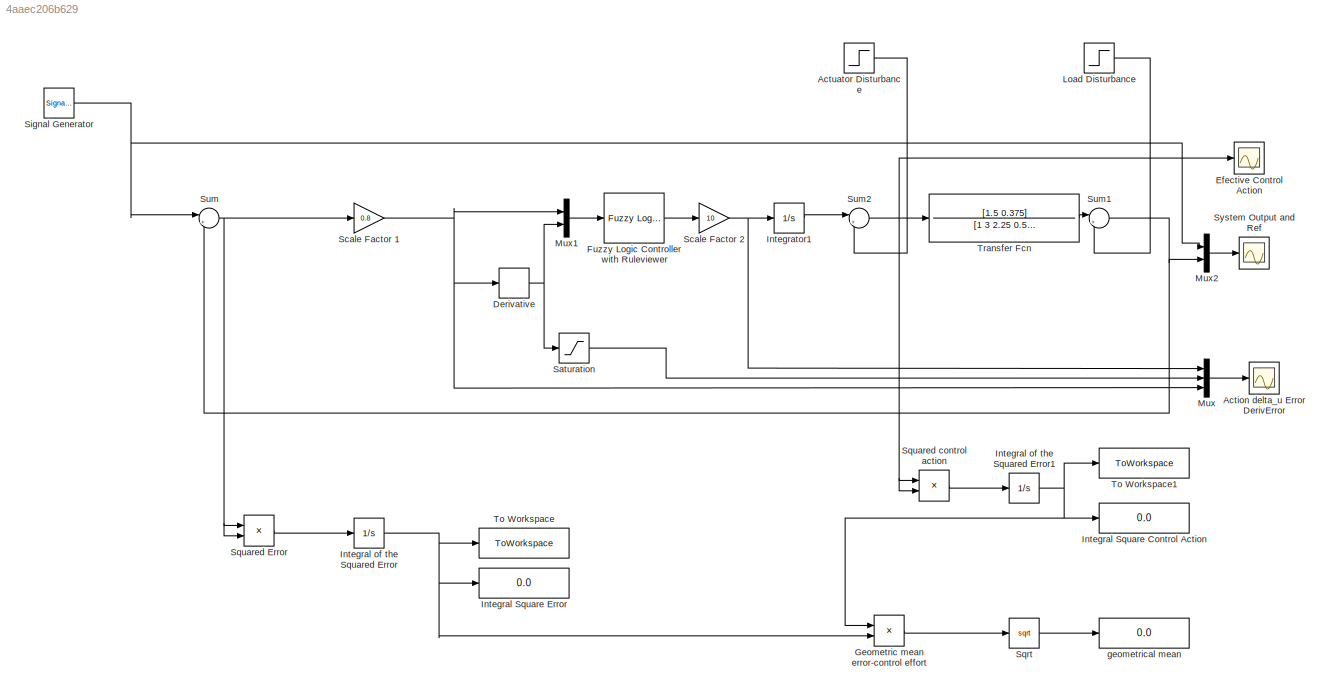
MODEL slx_4aaec206b629
KIND model
CONFIG AbsTol = auto
CONFIG EnableMultiTasking = off
CONFIG FixedStep = auto
CONFIG MaxStep = auto
CONFIG MinStep = auto
CONFIG RelTol = 1e-3
CONFIG SampleTimeConstraint = Unconstrained
CONFIG SolverName = VariableStepAuto
CONFIG StartTime = 0.0
CONFIG StopTime = 400
BLOCK [Scope] Action delta_u Error DerivError
  Floating = off
  NumInputPorts = 1
  ScopeSpecificationString = Simulink.scopes.TimeScopeBlockCfg('CurrentConfiguration', extmgr.ConfigurationSet(extmgr.Configuration('Core','General UI',true),extmgr.Configuration('Core','Source UI',true),extmgr.Configuration('Sources','WiredSimulink',true,'DataLoggingVariableName','ScopeData2'),extmgr.Configuration('Visuals','Time Domain',true,'SerializedDisplays',{struct('MinYLimReal','-5.61316','MaxYLimReal','8.85816','YLab...<+1430ch>
BLOCK [Step] Actuator Disturbance
  SampleTime = 0
  Time = 200
BLOCK [Derivative] Derivative
BLOCK [Scope] Efective Control Action
  Floating = off
  NumInputPorts = 1
  ScopeSpecificationString = Simulink.scopes.TimeScopeBlockCfg('CurrentConfiguration', extmgr.ConfigurationSet(extmgr.Configuration('Core','General UI',true),extmgr.Configuration('Core','Source UI',true),extmgr.Configuration('Sources','WiredSimulink',true,'DataLoggingVariableName','ScopeData1'),extmgr.Configuration('Visuals','Time Domain',true,'SerializedDisplays',{struct('MinYLimReal','-2.73102','MaxYLimReal','3.5592','YLabe...<+1388ch>
BLOCK [Reference] Fuzzy Logic Controller with Ruleviewer  REF=fuzblock/Fuzzy Logic   (lib defined in mdl_858b3b3e7478)
Controller 
with Ruleviewer
  SourceBlock = fuzblock/Fuzzy Logic \nController \nwith Ruleviewer
  SourceType = Fuzzy Inference System
BLOCK [Product] Geometric mean error-control effort
BLOCK [Display] Integral Square Control Action
  Decimation = 1
BLOCK [Display] Integral Square Error
  Decimation = 1
BLOCK [Integrator] Integral of the Squared Error
BLOCK [Integrator] Integral of the Squared Error1
BLOCK [Integrator] Integrator1
BLOCK [Step] Load Disturbance
  SampleTime = 0
  Time = 300
BLOCK [Mux] Mux
  DisplayOption = bar
  Inputs = 3
BLOCK [Mux] Mux1
  DisplayOption = bar
  Inputs = 2
BLOCK [Mux] Mux2
  DisplayOption = bar
  Inputs = 2
BLOCK [Saturate] Saturation
BLOCK [Gain] Scale Factor 1
  Gain = 0.8
BLOCK [Gain] Scale Factor 2
  Gain = 10
BLOCK [SignalGenerator] Signal Generator
  Frequency = 0.02
  Units = rad/sec
BLOCK [Sqrt] Sqrt
BLOCK [Product] Squared Error
BLOCK [Product] Squared control action
BLOCK [Sum] Sum
  Inputs = |+-
BLOCK [Sum] Sum1
  Inputs = |+-
BLOCK [Sum] Sum2
  Inputs = |+-
BLOCK [Scope] System Output and Ref
  Floating = off
  NumInputPorts = 1
  ScopeSpecificationString = Simulink.scopes.TimeScopeBlockCfg('CurrentConfiguration', extmgr.ConfigurationSet(extmgr.Configuration('Core','General UI',true),extmgr.Configuration('Core','Source UI',true),extmgr.Configuration('Sources','WiredSimulink',true),extmgr.Configuration('Visuals','Time Domain',true,'SerializedDisplays',{struct('MinYLimReal','-1.57261','MaxYLimReal','1.28585','YLabelReal','','MinYLimMag','0.00000','MaxY...<+1370ch>
BLOCK [ToWorkspace] To Workspace
  FixptAsFi = on
  MaxDataPoints = inf
  SampleTime = -1
  SaveFormat = Timeseries
  VariableName = Performance1
BLOCK [ToWorkspace] To Workspace1
  FixptAsFi = on
  MaxDataPoints = inf
  SampleTime = -1
  SaveFormat = Timeseries
  VariableName = Performance2
BLOCK [TransferFcn] Transfer Fcn
  Denominator = [1 3 2.25 0.55]
  Numerator = [1.5 0.375]
BLOCK [Display] geometrical mean
  Decimation = 1
LINE Actuator Disturbance:1 -> Sum2:2
NET Derivative:1 -> Mux1:2, Saturation:1
LINE Fuzzy Logic Controller with Ruleviewer:1 -> Scale Factor 2:1
LINE Geometric mean error-control effort:1 -> Sqrt:1
NET Integral of the Squared Error1:1 -> Geometric mean error-control effort:1, Integral Square Control Action:1, To Workspace1:1
NET Integral of the Squared Error:1 -> Geometric mean error-control effort:2, Integral Square Error:1, To Workspace:1
LINE Integrator1:1 -> Sum2:1
LINE Load Disturbance:1 -> Sum1:2
LINE Mux1:1 -> Fuzzy Logic Controller with Ruleviewer:1
LINE Mux2:1 -> System Output and Ref:1
LINE Mux:1 -> Action delta_u Error DerivError:1
LINE Saturation:1 -> Mux:2
NET Scale Factor 1:1 -> Derivative:1, Mux1:1, Mux:3
NET Scale Factor 2:1 -> Integrator1:1, Mux:1
NET Signal Generator:1 -> Mux2:1, Sum:1
LINE Sqrt:1 -> geometrical mean:1
LINE Squared Error:1 -> Integral of the Squared Error:1
LINE Squared control action:1 -> Integral of the Squared Error1:1
NET Sum1:1 -> Mux2:2, Sum:2
NET Sum2:1 -> Efective Control Action:1, Squared control action:1, Squared control action:2, Transfer Fcn:1
NET Sum:1 -> Scale Factor 1:1, Squared Error:1, Squared Error:2
LINE Transfer Fcn:1 -> Sum1:1
note: NET lines group one-source signal fan-out (src -> all destinations, sorted); 1:1 wires keep LINE
